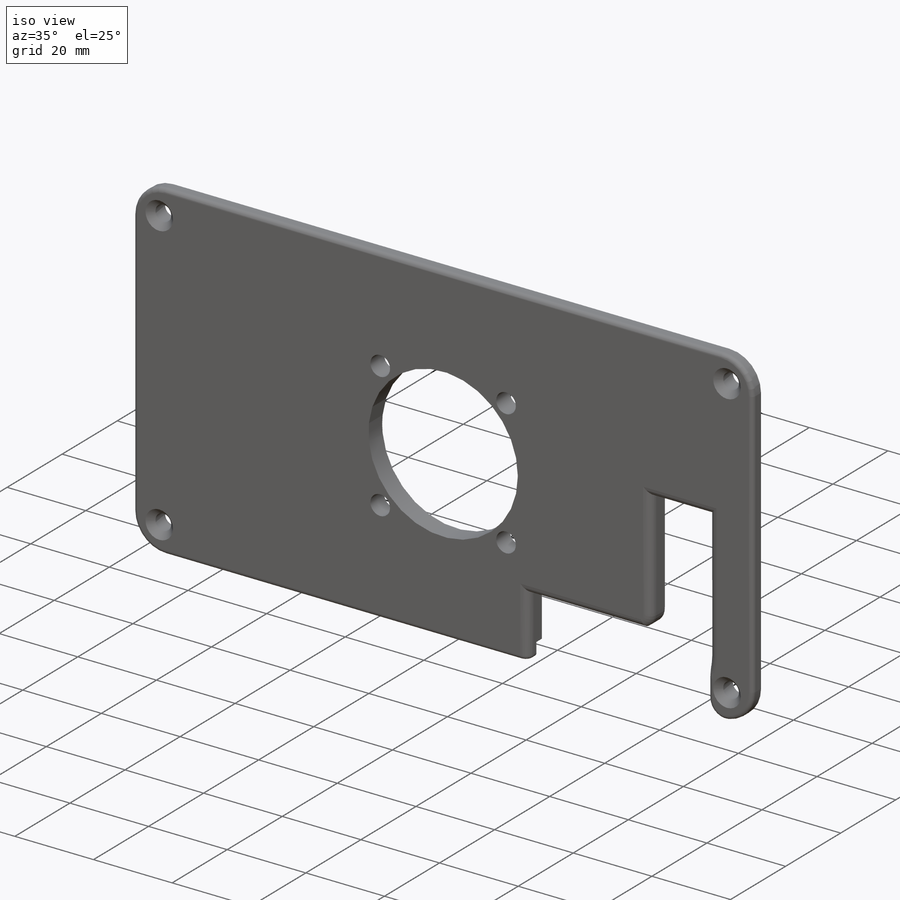
[diagram: iso view]
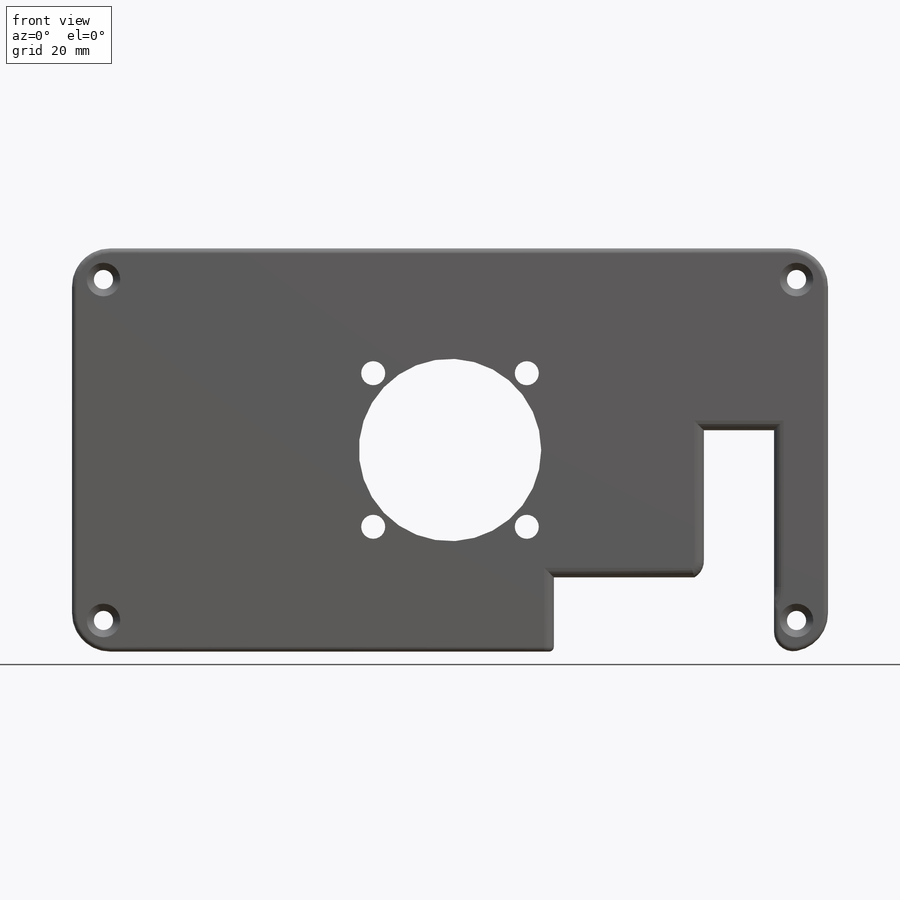
[diagram: front view]
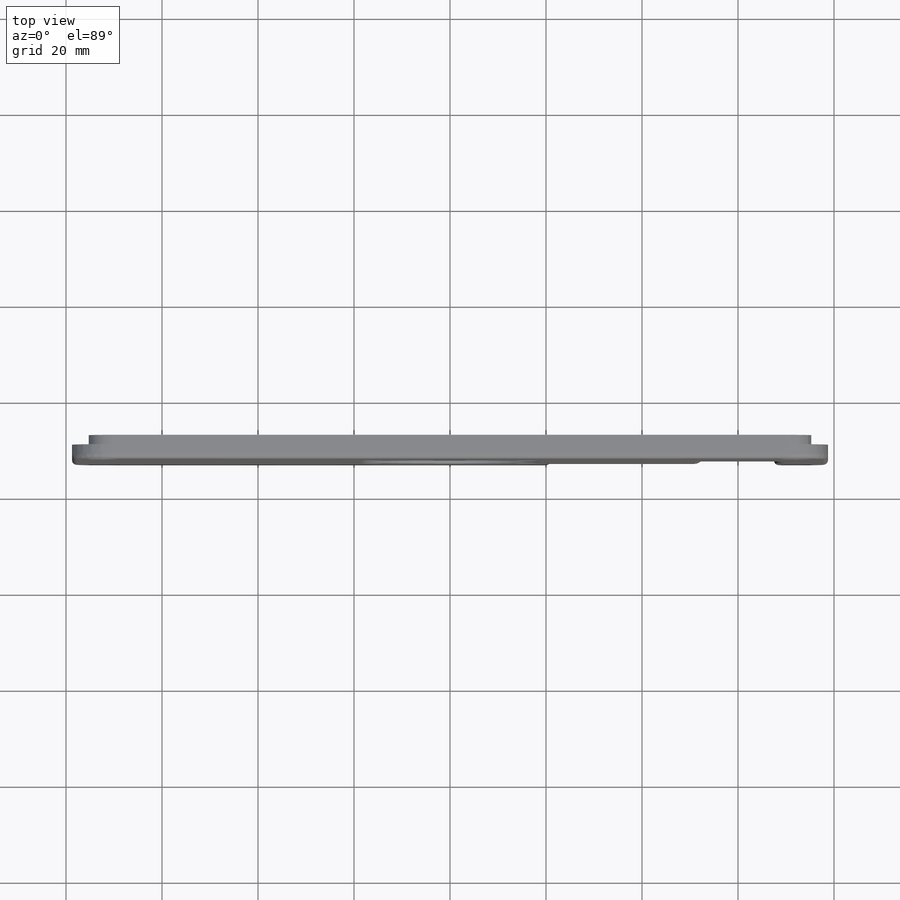
[diagram: top view]
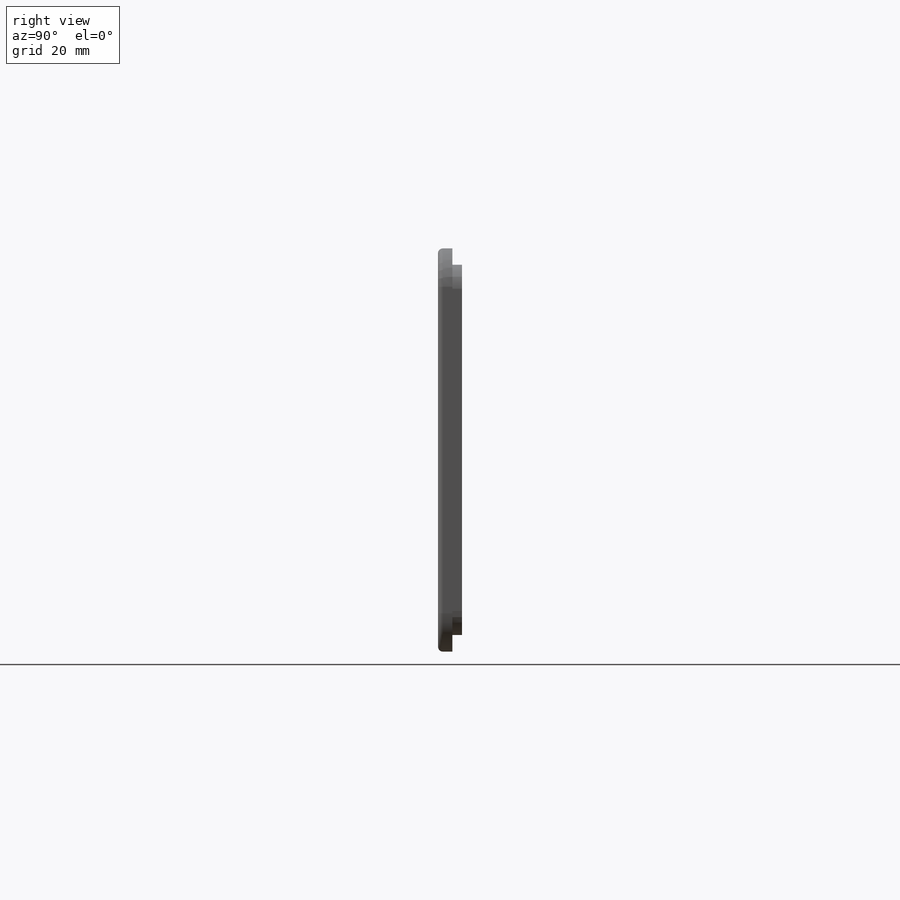
[diagram: right view]
SOLIDWORKS PART (.sldprt)
format: sldprt  version: not decoded by parser v0  size: 391,680 bytes
history: native  units: mm
features: sketch x7, plane x4, cut_extrude x4, extrude x2, material x1, chamfer x1, fillet x1 (+9 scaffold rows collapsed)
feature tree (29):
  scaffold x9  (default folders/planes/origin — collapsed)
  material  "Materiale <non specificato>"
  plane  "Piano frontale"
  plane  "Piano superiore"
  plane  "Piano destro"
  sketch  "Schizzo1"
  plane  "Piano1"  Offset=30mm
  sketch  "Schizzo2"  dims[D1=0.5mm D2=0.5mm D3=0.5mm D4=0.5mm]
  extrude  "Estrusione-Estrusione1"  Depth=3mm
  sketch  "Schizzo3"  dims[D1=0.0mm]
  extrude  "Estrusione-Estrusione2"  Depth=2mm
  sketch  "Schizzo4"  dims[c1.D1=10.0mm c1.D2=10.0mm c2.D1=10.0mm c2.D4=4.0mm c2.D2=15.0mm c2.D3=8.5mm c3.D4=8.5mm c3.D2=~27.369516mm c3.D3=27.0mm c3.D1=7.0mm c3.D5=1.5mm c4.D2=2.0mm c4.D3=2.0mm c4.D4=2.0mm c4.D5=2.0mm c4.D6=2.0mm]
  cut_extrude  "Taglio-Estrusione1"  Depth=7mm
  sketch  "Schizzo5"  dims[D3=~2.043867mm D1=7.0mm D2=7.0mm]
  cut_extrude  "Taglio-Estrusione2"  Depth=10mm
  chamfer  "Smusso1"  Distance=1.5mm Angle=45deg
  fillet  "Raccordo1"  Radius=8mm Raccordo3=0deg Raccordo4=0deg
  sketch  "Schizzo6"  dims[D3=5.0mm D4=38.0mm D1=32.0mm D2=32.0mm]
  cut_extrude  "Taglio-Estrusione3"  Depth=10mm
  sketch  "Schizzo7"
  cut_extrude  "Taglio-Estrusione4"  Depth=10mm Raccordo8=0deg Raccordo10=0deg Raccordo11=0deg
decode coverage: 13 of 15 modeling features carry decoded parameters
note: ~ marks probable driven/reference dimensions
note: suppression state not decoded; provenance and decode notes live in map.json
